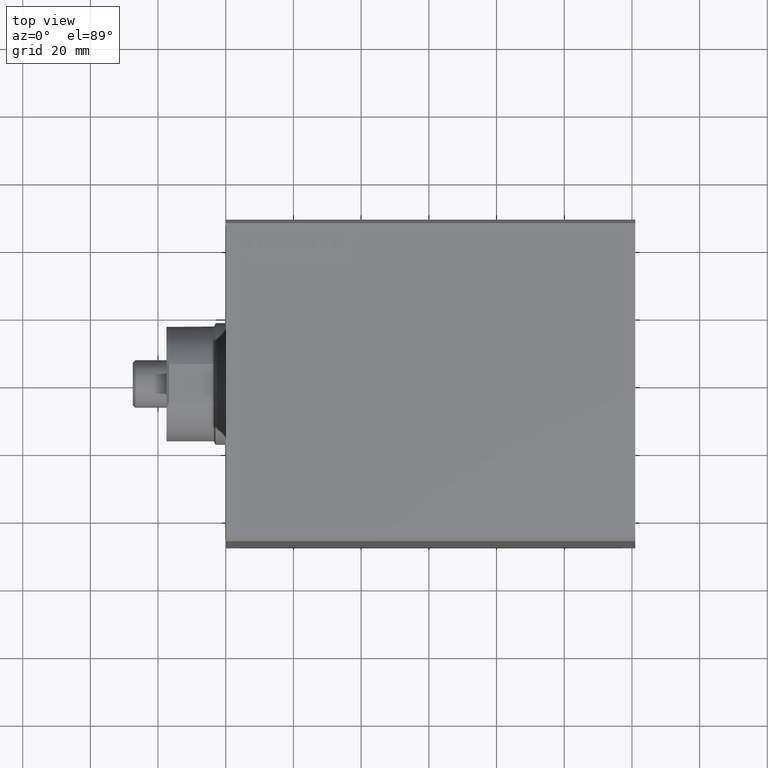
[diagram: clean part render]
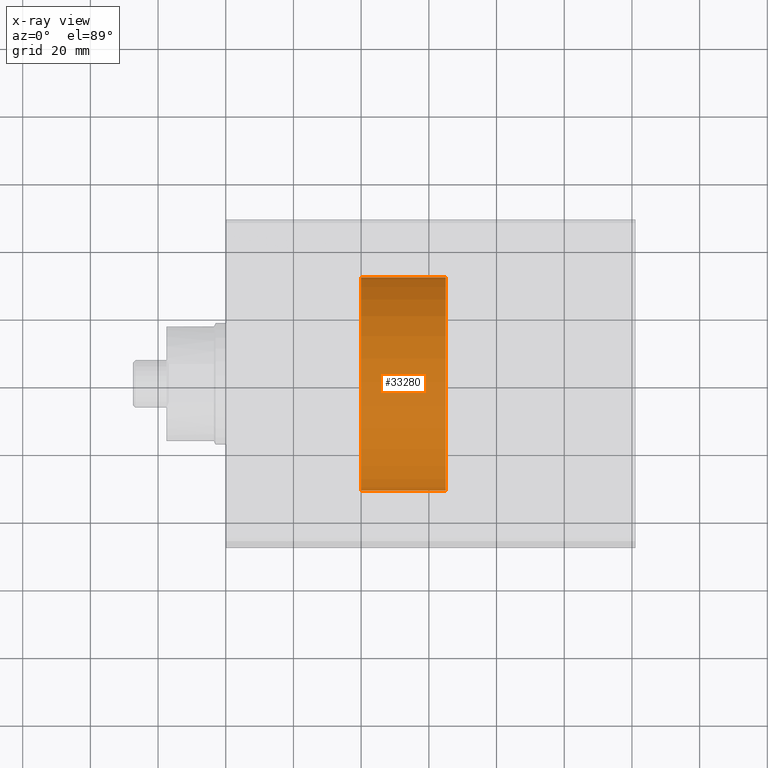
[diagram: x-ray — body ghosted, one internal face saturated and labeled with its STEP entity id]
A machine part, top view, then the same camera in x-ray: the body is ghosted and one INTERNAL B-rep face — a face not visible from any outside direction — is saturated and labeled: STEP entity #33280.
In plain terms, the highlighted cylindrical surface (partial cylindrical patch) has radius 31.5 mm, axis along (-1, -0, 0).
Its self-contained STEP definition (entity closure, byte-faithful):
#1560 = CARTESIAN_POINT ( 'NONE',  ( 0.000000000000000000, 0.000000000000000000, 0.000000000000000000 ) ) ;
#1637 = DIRECTION ( 'NONE',  ( -0.000000000000000000, -2.023432546540812942E-16, 1.000000000000000000 ) ) ;
#2667 = CARTESIAN_POINT ( 'NONE',  ( 3.857637417314162689E-15, 31.49999999999999289, 6.373812521603559832E-15 ) ) ;
#2715 = EDGE_CURVE ( 'NONE', #40474, #44242, #10084, .T. ) ;
#4540 = CARTESIAN_POINT ( 'NONE',  ( 0.000000000000000000, -31.49999999999999289, -6.373812521603559043E-15 ) ) ;
#4900 = EDGE_LOOP ( 'NONE', ( #17733, #37583, #23175, #13295 ) ) ;
#5399 = CARTESIAN_POINT ( 'NONE',  ( 3.857637417314161111E-15, 31.49999999999997868, 25.00000000000000000 ) ) ;
#6107 = CARTESIAN_POINT ( 'NONE',  ( 0.000000000000000000, -31.50000000000000711, 82.50000000000000000 ) ) ;
#8617 = CARTESIAN_POINT ( 'NONE',  ( 3.857637417314161900E-15, 31.49999999999997868, 82.50000000000000000 ) ) ;
#10084 = CIRCLE ( 'NONE', #22293, 31.49999999999998579 ) ;
#10693 = VECTOR ( 'NONE', #1637, 1000.000000000000000 ) ;
#10864 = EDGE_CURVE ( 'NONE', #41508, #40474, #20033, .T. ) ;
#13295 = ORIENTED_EDGE ( 'NONE', *, *, #10864, .F. ) ;
#13564 = CARTESIAN_POINT ( 'NONE',  ( 0.000000000000000000, -31.49999999999999289, 24.99999999999998579 ) ) ;
#14920 = FACE_OUTER_BOUND ( 'NONE', #4900, .T. ) ;
#16356 = VERTEX_POINT ( 'NONE', #2667 ) ;
#16969 = CARTESIAN_POINT ( 'NONE',  ( 0.000000000000000000, -5.058581366352031863E-15, 24.99999999999999289 ) ) ;
#17733 = ORIENTED_EDGE ( 'NONE', *, *, #41947, .T. ) ;
#17837 = DIRECTION ( 'NONE',  ( -0.000000000000000000, -2.023432546540812942E-16, 1.000000000000000000 ) ) ;
#19814 = DIRECTION ( 'NONE',  ( -0.000000000000000000, -2.023432546540812942E-16, 1.000000000000000000 ) ) ;
#20000 = CIRCLE ( 'NONE', #22861, 31.49999999999999289 ) ;
#20033 = LINE ( 'NONE', #6107, #36832 ) ;
#22021 = DIRECTION ( 'NONE',  ( -0.000000000000000000, -2.023432546540812942E-16, 1.000000000000000000 ) ) ;
#22293 = AXIS2_PLACEMENT_3D ( 'NONE', #16969, #30674, #44399 ) ;
#22861 = AXIS2_PLACEMENT_3D ( 'NONE', #1560, #22021, #35746 ) ;
#23175 = ORIENTED_EDGE ( 'NONE', *, *, #2715, .F. ) ;
#30674 = DIRECTION ( 'NONE',  ( -0.000000000000000000, -2.023432546540812942E-16, 1.000000000000000000 ) ) ;
#31104 = CARTESIAN_POINT ( 'NONE',  ( 0.000000000000000000, -1.669331850896170751E-14, 82.50000000000000000 ) ) ;
#32694 = EDGE_CURVE ( 'NONE', #16356, #44242, #36273, .T. ) ;
#33280 = ADVANCED_FACE ( 'NONE', ( #14920 ), #41907, .T. ) ;
#35746 = DIRECTION ( 'NONE',  ( 0.000000000000000000, -1.000000000000000000, -2.023432546540812942E-16 ) ) ;
#36273 = LINE ( 'NONE', #8617, #10693 ) ;
#36832 = VECTOR ( 'NONE', #19814, 1000.000000000000000 ) ;
#37583 = ORIENTED_EDGE ( 'NONE', *, *, #32694, .T. ) ;
#38754 = DIRECTION ( 'NONE',  ( 0.000000000000000000, -1.000000000000000000, 0.000000000000000000 ) ) ;
#40188 = AXIS2_PLACEMENT_3D ( 'NONE', #31104, #17837, #38754 ) ;
#40474 = VERTEX_POINT ( 'NONE', #13564 ) ;
#41508 = VERTEX_POINT ( 'NONE', #4540 ) ;
#41907 = CYLINDRICAL_SURFACE ( 'NONE', #40188, 31.49999999999999289 ) ;
#41947 = EDGE_CURVE ( 'NONE', #41508, #16356, #20000, .T. ) ;
#44242 = VERTEX_POINT ( 'NONE', #5399 ) ;
#44399 = DIRECTION ( 'NONE',  ( 0.000000000000000000, -1.000000000000000000, -2.202823461557851327E-16 ) ) ;